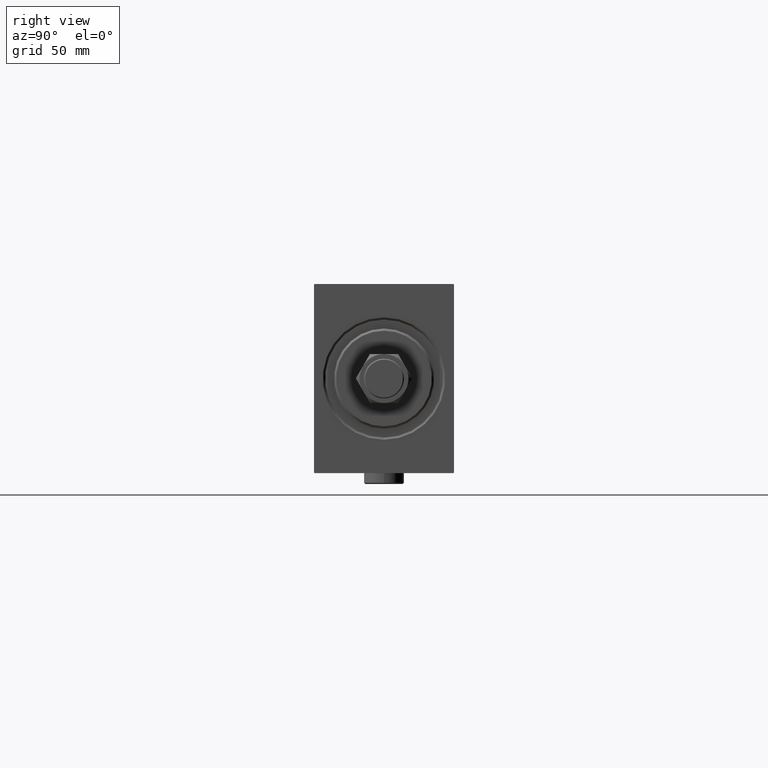
[diagram: clean part render]
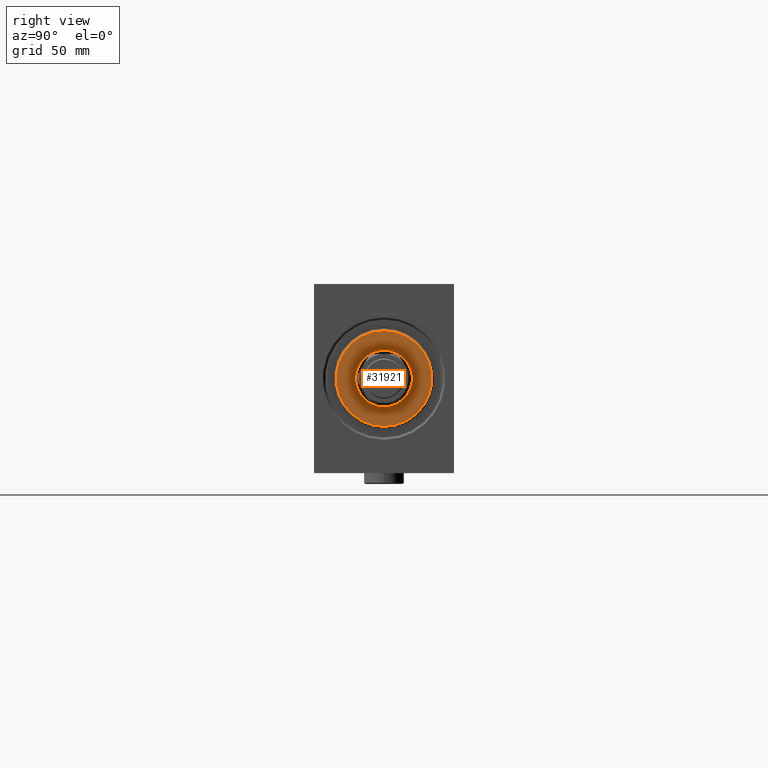
[diagram: same view with one face highlighted and labeled with its STEP entity id]
A machine part, right view. The second image highlights one B-rep face of the part: STEP entity #31921.
In plain terms, the highlighted planar face has unit normal (1, 0, 0).
Its self-contained STEP definition (entity closure, byte-faithful):
#846 = CARTESIAN_POINT ( 'NONE',  ( 3.000000000000000000, 0.000000000000000000, 21.50000000000001066 ) ) ;
#895 = VERTEX_POINT ( 'NONE', #28076 ) ;
#5378 = EDGE_CURVE ( 'NONE', #39061, #18293, #22262, .T. ) ;
#6851 = DIRECTION ( 'NONE',  ( 1.000000000000000000, -0.000000000000000000, 0.000000000000000000 ) ) ;
#7534 = AXIS2_PLACEMENT_3D ( 'NONE', #22351, #18846, #18379 ) ;
#8154 = AXIS2_PLACEMENT_3D ( 'NONE', #40988, #44918, #27271 ) ;
#10088 = DIRECTION ( 'NONE',  ( 0.000000000000000000, 0.000000000000000000, -1.000000000000000000 ) ) ;
#11445 = EDGE_CURVE ( 'NONE', #895, #32989, #13344, .T. ) ;
#12730 = DIRECTION ( 'NONE',  ( 0.000000000000000000, 0.000000000000000000, -1.000000000000000000 ) ) ;
#13344 = CIRCLE ( 'NONE', #36393, 12.75000000000000000 ) ;
#13346 = PLANE ( 'NONE',  #41431 ) ;
#13586 = FACE_OUTER_BOUND ( 'NONE', #34982, .T. ) ;
#14585 = EDGE_CURVE ( 'NONE', #32989, #895, #39470, .T. ) ;
#16883 = ORIENTED_EDGE ( 'NONE', *, *, #14585, .T. ) ;
#17378 = ORIENTED_EDGE ( 'NONE', *, *, #24205, .T. ) ;
#18293 = VERTEX_POINT ( 'NONE', #22942 ) ;
#18379 = DIRECTION ( 'NONE',  ( 0.000000000000000000, 0.000000000000000000, -1.000000000000000000 ) ) ;
#18846 = DIRECTION ( 'NONE',  ( -1.000000000000000000, 0.000000000000000000, -0.000000000000000000 ) ) ;
#19048 = CIRCLE ( 'NONE', #36179, 21.50000000000001066 ) ;
#22262 = CIRCLE ( 'NONE', #8154, 21.50000000000001066 ) ;
#22351 = CARTESIAN_POINT ( 'NONE',  ( 3.000000000000000000, 0.000000000000000000, 0.000000000000000000 ) ) ;
#22942 = CARTESIAN_POINT ( 'NONE',  ( 3.000000000000000000, 2.694222958124177993E-15, -21.50000000000001066 ) ) ;
#24205 = EDGE_CURVE ( 'NONE', #18293, #39061, #19048, .T. ) ;
#25309 = DIRECTION ( 'NONE',  ( 0.000000000000000000, 0.000000000000000000, -1.000000000000000000 ) ) ;
#26473 = DIRECTION ( 'NONE',  ( 1.000000000000000000, -0.000000000000000000, 0.000000000000000000 ) ) ;
#27271 = DIRECTION ( 'NONE',  ( 0.000000000000000000, 0.000000000000000000, -1.000000000000000000 ) ) ;
#28076 = CARTESIAN_POINT ( 'NONE',  ( 3.000000000000000000, 1.561424668912874914E-15, -12.75000000000000000 ) ) ;
#30803 = EDGE_LOOP ( 'NONE', ( #16883, #38979 ) ) ;
#31921 = ADVANCED_FACE ( 'NONE', ( #13586, #41958 ), #13346, .T. ) ;
#32897 = CARTESIAN_POINT ( 'NONE',  ( 3.000000000000000000, 0.000000000000000000, 12.75000000000000000 ) ) ;
#32989 = VERTEX_POINT ( 'NONE', #32897 ) ;
#33923 = CARTESIAN_POINT ( 'NONE',  ( 3.000000000000000000, 0.000000000000000000, 0.000000000000000000 ) ) ;
#34982 = EDGE_LOOP ( 'NONE', ( #40437, #17378 ) ) ;
#36179 = AXIS2_PLACEMENT_3D ( 'NONE', #33923, #26473, #12730 ) ;
#36393 = AXIS2_PLACEMENT_3D ( 'NONE', #39487, #42958, #25309 ) ;
#38979 = ORIENTED_EDGE ( 'NONE', *, *, #11445, .T. ) ;
#39061 = VERTEX_POINT ( 'NONE', #846 ) ;
#39470 = CIRCLE ( 'NONE', #7534, 12.75000000000000000 ) ;
#39487 = CARTESIAN_POINT ( 'NONE',  ( 3.000000000000000000, 0.000000000000000000, 0.000000000000000000 ) ) ;
#40437 = ORIENTED_EDGE ( 'NONE', *, *, #5378, .T. ) ;
#40988 = CARTESIAN_POINT ( 'NONE',  ( 3.000000000000000000, 0.000000000000000000, 0.000000000000000000 ) ) ;
#41431 = AXIS2_PLACEMENT_3D ( 'NONE', #44988, #6851, #10088 ) ;
#41958 = FACE_BOUND ( 'NONE', #30803, .T. ) ;
#42958 = DIRECTION ( 'NONE',  ( -1.000000000000000000, 0.000000000000000000, -0.000000000000000000 ) ) ;
#44918 = DIRECTION ( 'NONE',  ( 1.000000000000000000, -0.000000000000000000, 0.000000000000000000 ) ) ;
#44988 = CARTESIAN_POINT ( 'NONE',  ( 3.000000000000000000, 0.000000000000000000, 0.000000000000000000 ) ) ;